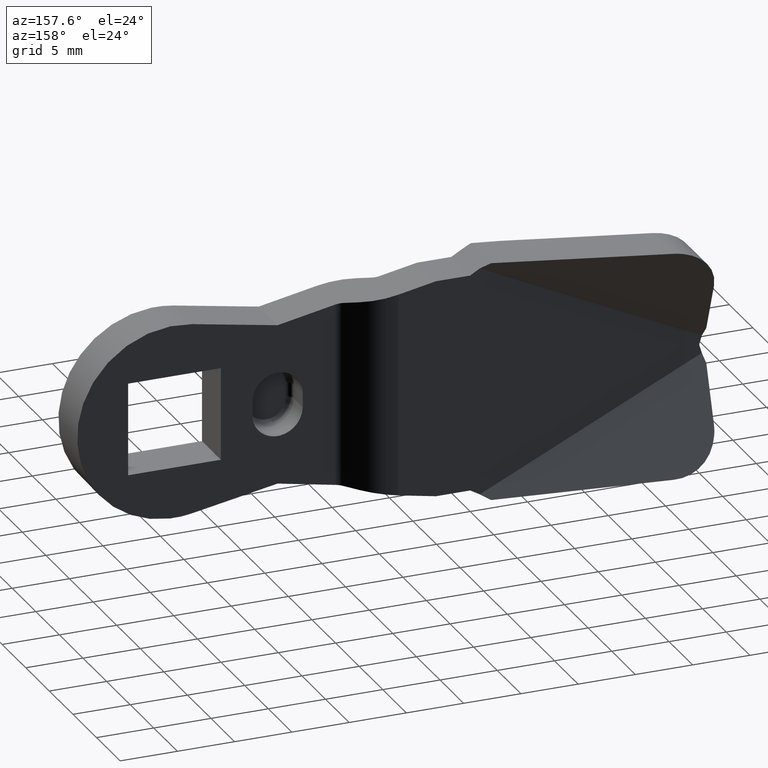
[diagram: clean part render]
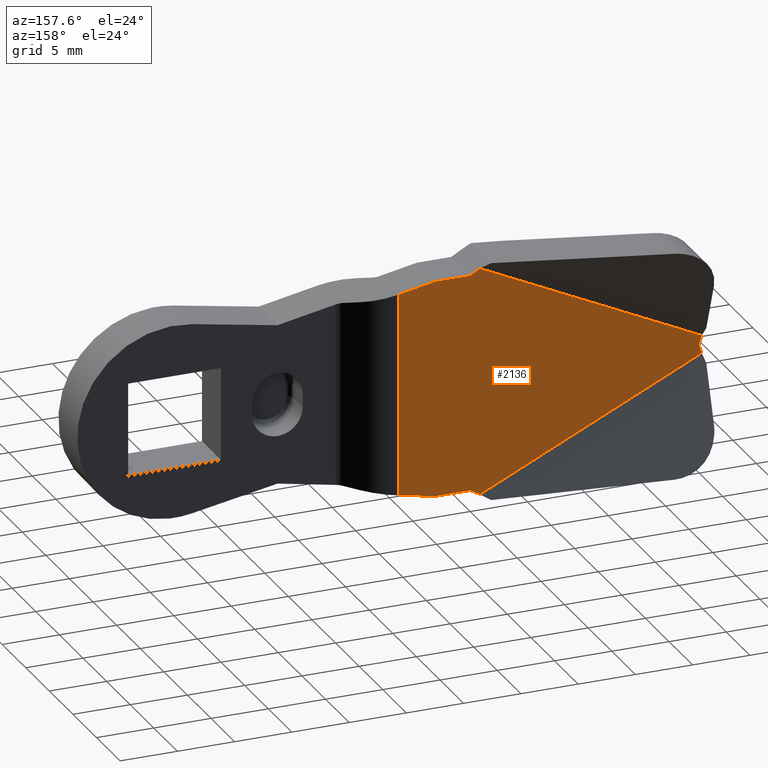
[diagram: same view with one face highlighted and labeled with its STEP entity id]
A machine part, auxiliary view. The second image highlights one B-rep face of the part: STEP entity #2136.
In plain terms, the highlighted face is a freeform B-spline surface patch.
Its self-contained STEP definition (entity closure, byte-faithful):
#1037=CARTESIAN_POINT('',(-18.727531121087949,0.0,8.870679312022730));
#1038=VERTEX_POINT('',#1037);
#1059=CARTESIAN_POINT('',(-18.727531121087949,0.0,-8.870679312022711));
#1060=VERTEX_POINT('',#1059);
#1074=CARTESIAN_POINT('',(-18.727531121087949,0.0,8.870679312022730));
#1075=CARTESIAN_POINT('',(-18.727531121087949,0.0,-8.870679312022711));
#1076=QUASI_UNIFORM_CURVE('',1,(#1074,#1075),.UNSPECIFIED.,.F.,.U.);
#1077=EDGE_CURVE('',#1038,#1060,#1076,.T.);
#1304=CARTESIAN_POINT('',(-45.230142657384512,0.0,0.773577127678626));
#1305=VERTEX_POINT('',#1304);
#1311=CARTESIAN_POINT('',(-45.000002137384797,0.0,-1.136868E-013));
#1312=VERTEX_POINT('',#1311);
#1313=CARTESIAN_POINT('',(-45.230142657384512,0.0,0.773577127678626));
#1314=CARTESIAN_POINT('',(-45.000002137384797,0.0,-1.136868E-013));
#1315=QUASI_UNIFORM_CURVE('',1,(#1313,#1314),.UNSPECIFIED.,.F.,.U.);
#1316=EDGE_CURVE('',#1305,#1312,#1315,.T.);
#1345=CARTESIAN_POINT('',(-45.230142657383603,3.642919E-014,-0.773577127679235));
#1346=VERTEX_POINT('',#1345);
#1347=CARTESIAN_POINT('',(-45.000002137384797,0.0,-1.136868E-013));
#1348=CARTESIAN_POINT('',(-45.230142657383603,3.642919E-014,-0.773577127679235));
#1349=QUASI_UNIFORM_CURVE('',1,(#1347,#1348),.UNSPECIFIED.,.F.,.U.);
#1350=EDGE_CURVE('',#1312,#1346,#1349,.T.);
#1550=CARTESIAN_POINT('',(-25.000001187432851,0.0,9.500000451225802));
#1551=VERTEX_POINT('',#1550);
#1557=CARTESIAN_POINT('',(-25.838711749085650,3.337608E-014,9.984506809118299));
#1558=VERTEX_POINT('',#1557);
#1559=CARTESIAN_POINT('',(-25.838711749085650,3.337608E-014,9.984506809118299));
#1560=CARTESIAN_POINT('',(-25.000001187432851,0.0,9.500000451225802));
#1561=QUASI_UNIFORM_CURVE('',1,(#1559,#1560),.UNSPECIFIED.,.F.,.U.);
#1562=EDGE_CURVE('',#1558,#1551,#1561,.T.);
#1602=CARTESIAN_POINT('',(-25.838711749085700,6.071532E-014,-9.984506809118408));
#1603=VERTEX_POINT('',#1602);
#1609=CARTESIAN_POINT('',(-25.000001187436251,0.0,-9.500000451225791));
#1610=VERTEX_POINT('',#1609);
#1611=CARTESIAN_POINT('',(-25.000001187436251,0.0,-9.500000451225791));
#1612=CARTESIAN_POINT('',(-25.838711749085700,6.071532E-014,-9.984506809118408));
#1613=QUASI_UNIFORM_CURVE('',1,(#1611,#1612),.UNSPECIFIED.,.F.,.U.);
#1614=EDGE_CURVE('',#1610,#1603,#1613,.T.);
#1671=CARTESIAN_POINT('',(-45.230142657384512,0.0,0.773577127678626));
#1672=CARTESIAN_POINT('',(-25.838711749085650,3.337608E-014,9.984506809118299));
#1673=QUASI_UNIFORM_CURVE('',1,(#1671,#1672),.UNSPECIFIED.,.F.,.U.);
#1674=EDGE_CURVE('',#1305,#1558,#1673,.T.);
#1685=CARTESIAN_POINT('',(-25.838711749085700,6.071532E-014,-9.984506809118408));
#1686=CARTESIAN_POINT('',(-45.230142657383603,3.642919E-014,-0.773577127679235));
#1687=QUASI_UNIFORM_CURVE('',1,(#1685,#1686),.UNSPECIFIED.,.F.,.U.);
#1688=EDGE_CURVE('',#1603,#1346,#1687,.T.);
#1715=CARTESIAN_POINT('',(-22.000001044943449,0.0,-9.500000451225802));
#1716=VERTEX_POINT('',#1715);
#1717=CARTESIAN_POINT('',(-22.000001044943449,0.0,-9.500000451225802));
#1718=CARTESIAN_POINT('',(-25.000001187436251,0.0,-9.500000451225791));
#1719=QUASI_UNIFORM_CURVE('',1,(#1717,#1718),.UNSPECIFIED.,.F.,.U.);
#1720=EDGE_CURVE('',#1716,#1610,#1719,.T.);
#1750=CARTESIAN_POINT('',(-22.000001044943499,0.0,9.500000451225791));
#1751=VERTEX_POINT('',#1750);
#1757=CARTESIAN_POINT('',(-25.000001187432851,0.0,9.500000451225802));
#1758=CARTESIAN_POINT('',(-22.000001044943499,0.0,9.500000451225791));
#1759=QUASI_UNIFORM_CURVE('',1,(#1757,#1758),.UNSPECIFIED.,.F.,.U.);
#1760=EDGE_CURVE('',#1551,#1751,#1759,.T.);
#2059=CARTESIAN_POINT('',(-22.000001044943449,0.0,-9.500000451225802));
#2060=CARTESIAN_POINT('',(-18.727531121087949,0.0,-8.870679312022711));
#2061=QUASI_UNIFORM_CURVE('',1,(#2059,#2060),.UNSPECIFIED.,.F.,.U.);
#2062=EDGE_CURVE('',#1716,#1060,#2061,.T.);
#2093=CARTESIAN_POINT('',(-18.727531121087949,0.0,8.870679312022730));
#2094=CARTESIAN_POINT('',(-22.000001044943499,0.0,9.500000451225791));
#2095=QUASI_UNIFORM_CURVE('',1,(#2093,#2094),.UNSPECIFIED.,.F.,.U.);
#2096=EDGE_CURVE('',#1038,#1751,#2095,.T.);
#2118=CARTESIAN_POINT('',(-46.553950042555762,3.552714E-014,10.981958813190589));
#2119=CARTESIAN_POINT('',(-17.403724920675760,3.552714E-014,10.981958813190589));
#2120=CARTESIAN_POINT('',(-46.553950042555762,3.552714E-014,-10.981959527338271));
#2121=CARTESIAN_POINT('',(-17.403724920675760,3.552714E-014,-10.981959527338271));
#2122=B_SPLINE_SURFACE_WITH_KNOTS('',1,1,((#2118,#2120),(#2119,#2121)),.UNSPECIFIED.,.F.,.F.,.U.,(2,2),(2,2),(0.0,29.150225121879991),(0.0,21.963918340528860),.UNSPECIFIED.);
#2123=ORIENTED_EDGE('',*,*,#2096,.F.);
#2124=ORIENTED_EDGE('',*,*,#1077,.T.);
#2125=ORIENTED_EDGE('',*,*,#2062,.F.);
#2126=ORIENTED_EDGE('',*,*,#1720,.T.);
#2127=ORIENTED_EDGE('',*,*,#1614,.T.);
#2128=ORIENTED_EDGE('',*,*,#1688,.T.);
#2129=ORIENTED_EDGE('',*,*,#1350,.F.);
#2130=ORIENTED_EDGE('',*,*,#1316,.F.);
#2131=ORIENTED_EDGE('',*,*,#1674,.T.);
#2132=ORIENTED_EDGE('',*,*,#1562,.T.);
#2133=ORIENTED_EDGE('',*,*,#1760,.T.);
#2134=EDGE_LOOP('',(#2123,#2124,#2125,#2126,#2127,#2128,#2129,#2130,#2131,#2132,#2133));
#2135=FACE_OUTER_BOUND('',#2134,.T.);
#2136=ADVANCED_FACE('',(#2135),#2122,.T.);